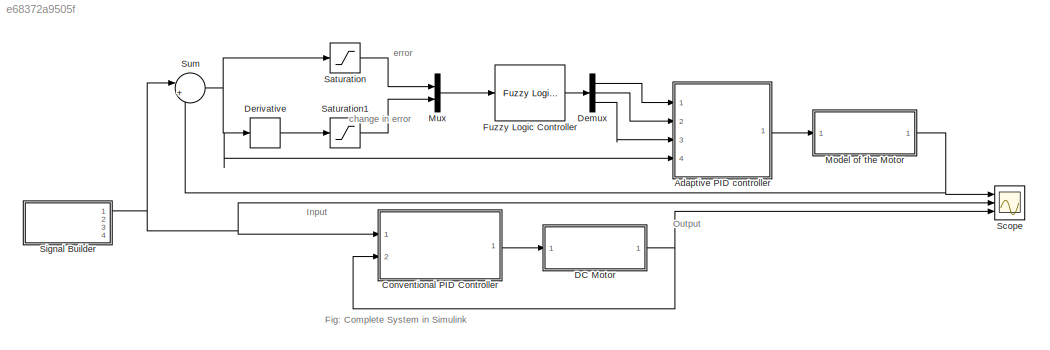
MODEL slx_e68372a9505f
KIND model
CONFIG AbsTol = auto
CONFIG EnableMultiTasking = off
CONFIG FixedStep = 0.001
CONFIG MaxStep = auto
CONFIG MinStep = auto
CONFIG RelTol = 1e-3
CONFIG SampleTimeConstraint = Unconstrained
CONFIG Solver = FixedStepAuto
CONFIG SolverName = FixedStepAuto
CONFIG StartTime = 0.0
CONFIG StopTime = 7.5
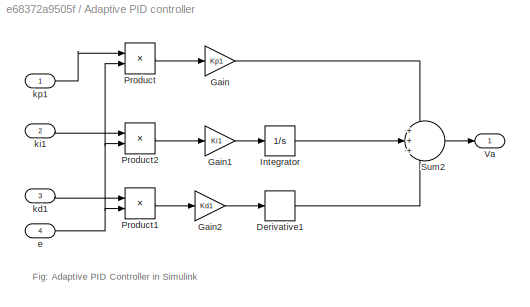
BLOCK [SubSystem]  Adaptive PID controller
  Ports = [4, 1]
  RequestExecContextInheritance = off
BLOCK [Derivative]  Adaptive PID controller/Derivative1
BLOCK [Gain]  Adaptive PID controller/Gain
  Gain = Kp1
BLOCK [Gain]  Adaptive PID controller/Gain1
  Gain = Ki1
BLOCK [Gain]  Adaptive PID controller/Gain2
  Gain = Kd1
BLOCK [Integrator]  Adaptive PID controller/Integrator
  Ports = [1, 1]
BLOCK [Product]  Adaptive PID controller/Product
  Ports = [2, 1]
BLOCK [Product]  Adaptive PID controller/Product1
  Ports = [2, 1]
BLOCK [Product]  Adaptive PID controller/Product2
  Ports = [2, 1]
BLOCK [Sum]  Adaptive PID controller/Sum2
  Inputs = +++
  Ports = [3, 1]
BLOCK [Outport]  Adaptive PID controller/Va
  VectorParamsAs1DForOutWhenUnconnected = off
BLOCK [Inport]  Adaptive PID controller/e
  Port = 4
BLOCK [Inport]  Adaptive PID controller/kd1 
  Port = 3
BLOCK [Inport]  Adaptive PID controller/ki1
  Port = 2
BLOCK [Inport]  Adaptive PID controller/kp1
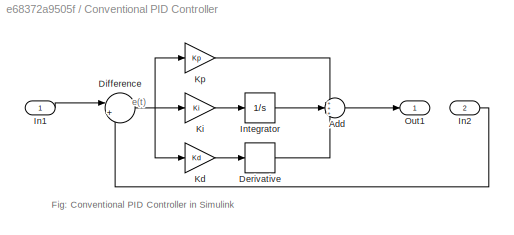
BLOCK [SubSystem] Conventional PID Controller
  Ports = [2, 1]
  RequestExecContextInheritance = off
BLOCK [Derivative] Conventional PID Controller/ Derivative
BLOCK [Sum] Conventional PID Controller/Add
  Inputs = +++
  Ports = [3, 1]
BLOCK [Sum] Conventional PID Controller/Difference
  Inputs = |+-
  Ports = [2, 1]
BLOCK [Inport] Conventional PID Controller/In1
BLOCK [Inport] Conventional PID Controller/In2
  Port = 2
BLOCK [Integrator] Conventional PID Controller/Integrator
  Ports = [1, 1]
BLOCK [Gain] Conventional PID Controller/Kd
  Gain = Kd
BLOCK [Gain] Conventional PID Controller/Ki
  Gain = Ki
BLOCK [Gain] Conventional PID Controller/Kp
  Gain = Kp
BLOCK [Outport] Conventional PID Controller/Out1
  VectorParamsAs1DForOutWhenUnconnected = off
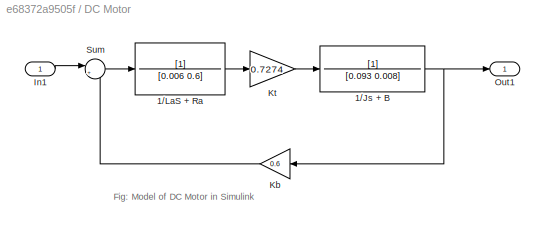
BLOCK [SubSystem] DC Motor
  Ports = [1, 1]
  RequestExecContextInheritance = off
BLOCK [TransferFcn] DC Motor/1//Js + B
  Denominator = [0.093 0.008]
BLOCK [TransferFcn] DC Motor/1//LaS + Ra
  Denominator = [0.006 0.6]
BLOCK [Inport] DC Motor/In1
BLOCK [Gain] DC Motor/Kb
  Gain = 0.6
BLOCK [Gain] DC Motor/Kt
  Gain = 0.7274
BLOCK [Outport] DC Motor/Out1
  VectorParamsAs1DForOutWhenUnconnected = off
BLOCK [Sum] DC Motor/Sum
  Inputs = |+-
  Ports = [2, 1]
BLOCK [Demux] Demux
  Outputs = 3
  Ports = [1, 3]
BLOCK [Derivative] Derivative
BLOCK [Reference] Fuzzy Logic Controller  REF=fuzblock/Fuzzy Logic   (lib defined in mdl_858b3b3e7478)
Controller
  Ports = [1, 1]
  SourceBlock = fuzblock/Fuzzy Logic \nController
  SourceProductBaseCode = FL
  SourceType = Fuzzy Inference System
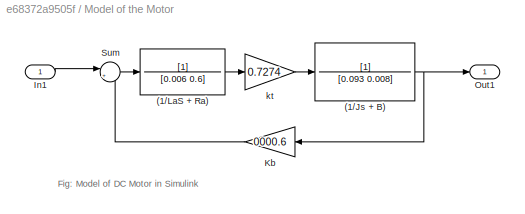
BLOCK [SubSystem] Model of the Motor
  Ports = [1, 1]
  RequestExecContextInheritance = off
BLOCK [TransferFcn] Model of the Motor/(1//Js + B)
  Denominator = [0.093 0.008]
BLOCK [TransferFcn] Model of the Motor/(1//LaS + Ra)
  Denominator = [0.006 0.6]
BLOCK [Inport] Model of the Motor/In1
BLOCK [Gain] Model of the Motor/Kb
  Gain = 0000.6
BLOCK [Outport] Model of the Motor/Out1
  VectorParamsAs1DForOutWhenUnconnected = off
BLOCK [Sum] Model of the Motor/Sum
  Inputs = |+-
  Ports = [2, 1]
BLOCK [Gain] Model of the Motor/kt
  Gain = 0.7274
BLOCK [Mux] Mux
  DisplayOption = bar
  Inputs = 2
  Ports = [2, 1]
BLOCK [Saturate] Saturation
  LinearizeAsGain = off
  LowerLimit = -1
  UpperLimit = 1
  ZeroCross = off
BLOCK [Saturate] Saturation1
  LinearizeAsGain = off
  LowerLimit = -1
  UpperLimit = 1
BLOCK [Scope] Scope
  Floating = off
  NumInputPorts = 3
  Ports = [3]
  ScopeSpecificationString = Simulink.scopes.TimeScopeBlockCfg('CurrentConfiguration', extmgr.ConfigurationSet(extmgr.Configuration('Core','General UI',true),extmgr.Configuration('Core','Source UI',true),extmgr.Configuration('Sources','WiredSimulink',true),extmgr.Configuration('Visuals','Time Domain',true,'SerializedDisplays',{struct('MinYLimReal','-0.28885','MaxYLimReal','2.59967','YLabelReal','','MinYLimMag','0.00000','MaxY...<+1593ch>
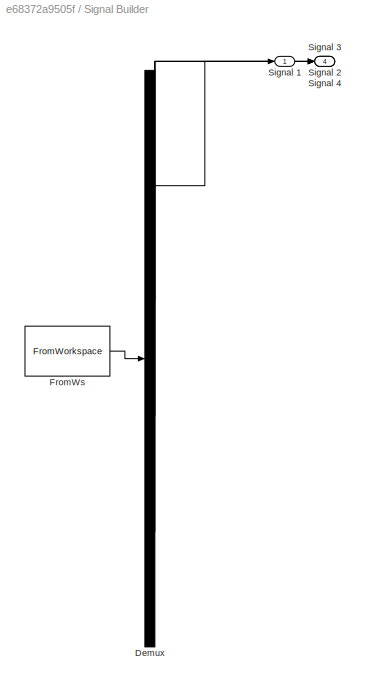
BLOCK [SubSystem] Signal Builder
  ClipboardFcn = sigbuilder_block('clipboard');
  CloseFcn = sigbuilder_block('close');
  ContinueFcn = sigbuilder_block('continue');
  CopyFcn = sigbuilder_block('copy');
  DeleteFcn = sigbuilder_block('delete');
  LoadFcn = sigbuilder_block('load');
  MaskHideContents = on
  ModelCloseFcn = sigbuilder_block('modelClose');
  NameChangeFcn = sigbuilder_block('namechange');
  OpenFcn = sigbuilder_block('open',[148.8 141 550.8 400.2 ]);
  PauseFcn = sigbuilder_block('pause');
  Ports = [0, 4]
  PreSaveFcn = sigbuilder_block('preSave');
  RequestExecContextInheritance = off
  StartFcn = sigbuilder_block('start');
  StopFcn = sigbuilder_block('stop');
  Tag = STV Subsys
BLOCK [Demux] Signal Builder/Demux
  DisplayOption = none
  Ports = [1, 4]
  Tag = STV Demux
BLOCK [FromWorkspace] Signal Builder/FromWs
  Tag = STV FromWs
  VariableName = tuvar
BLOCK [Outport] Signal Builder/Signal 1
  Tag = STV Outport
  VectorParamsAs1DForOutWhenUnconnected = off
BLOCK [Outport] Signal Builder/Signal 2
  Port = 2
  Tag = STV Outport
  VectorParamsAs1DForOutWhenUnconnected = off
BLOCK [Outport] Signal Builder/Signal 3
  Port = 3
  Tag = STV Outport
  VectorParamsAs1DForOutWhenUnconnected = off
BLOCK [Outport] Signal Builder/Signal 4
  Port = 4
  Tag = STV Outport
  VectorParamsAs1DForOutWhenUnconnected = off
BLOCK [Sum] Sum
  Inputs = |+-
  Ports = [2, 1]
ANNOTATION (root): Fig: Complete System in Simulink
ANNOTATION (root): Input
ANNOTATION (root): Output
ANNOTATION (root): change in error
ANNOTATION (root): error
ANNOTATION  Adaptive PID controller: Fig: Adaptive PID Controller in Simulink
ANNOTATION Conventional PID Controller: e(t)
ANNOTATION Conventional PID Controller: Fig: Conventional PID Controller in Simulink
ANNOTATION DC Motor: Fig: Model of DC Motor in Simulink
ANNOTATION Model of the Motor: Fig: Model of DC Motor in Simulink
LINE  Adaptive PID controller/Derivative1:1 ->  Adaptive PID controller/Sum2:3
LINE  Adaptive PID controller/Gain1:1 ->  Adaptive PID controller/Integrator:1
LINE  Adaptive PID controller/Gain2:1 ->  Adaptive PID controller/Derivative1:1
LINE  Adaptive PID controller/Gain:1 ->  Adaptive PID controller/Sum2:1
LINE  Adaptive PID controller/Integrator:1 ->  Adaptive PID controller/Sum2:2
LINE  Adaptive PID controller/Product1:1 ->  Adaptive PID controller/Gain2:1
LINE  Adaptive PID controller/Product2:1 ->  Adaptive PID controller/Gain1:1
LINE  Adaptive PID controller/Product:1 ->  Adaptive PID controller/Gain:1
LINE  Adaptive PID controller/Sum2:1 ->  Adaptive PID controller/Va:1
NET  Adaptive PID controller/e:1 ->  Adaptive PID controller/Product1:2,  Adaptive PID controller/Product2:2,  Adaptive PID controller/Product:2
LINE  Adaptive PID controller/kd1 :1 ->  Adaptive PID controller/Product1:1
LINE  Adaptive PID controller/ki1:1 ->  Adaptive PID controller/Product2:1
LINE  Adaptive PID controller/kp1:1 ->  Adaptive PID controller/Product:1
LINE  Adaptive PID controller:1 -> Model of the Motor:1
LINE Conventional PID Controller/ Derivative:1 -> Conventional PID Controller/Add:3
LINE Conventional PID Controller/Add:1 -> Conventional PID Controller/Out1:1
NET Conventional PID Controller/Difference:1 -> Conventional PID Controller/Kd:1, Conventional PID Controller/Ki:1, Conventional PID Controller/Kp:1
LINE Conventional PID Controller/In1:1 -> Conventional PID Controller/Difference:1
LINE Conventional PID Controller/In2:1 -> Conventional PID Controller/Difference:2
LINE Conventional PID Controller/Integrator:1 -> Conventional PID Controller/Add:2
LINE Conventional PID Controller/Kd:1 -> Conventional PID Controller/ Derivative:1
LINE Conventional PID Controller/Ki:1 -> Conventional PID Controller/Integrator:1
LINE Conventional PID Controller/Kp:1 -> Conventional PID Controller/Add:1
LINE Conventional PID Controller:1 -> DC Motor:1
NET DC Motor/1//Js + B:1 -> DC Motor/Kb:1, DC Motor/Out1:1
LINE DC Motor/1//LaS + Ra:1 -> DC Motor/Kt:1
LINE DC Motor/In1:1 -> DC Motor/Sum:1
LINE DC Motor/Kb:1 -> DC Motor/Sum:2
LINE DC Motor/Kt:1 -> DC Motor/1//Js + B:1
LINE DC Motor/Sum:1 -> DC Motor/1//LaS + Ra:1
NET DC Motor:1 -> Conventional PID Controller:2, Scope:3
LINE Demux:1 ->  Adaptive PID controller:1
LINE Demux:2 ->  Adaptive PID controller:2
LINE Demux:3 ->  Adaptive PID controller:3
LINE Derivative:1 -> Saturation1:1
LINE Fuzzy Logic Controller:1 -> Demux:1
NET Model of the Motor/(1//Js + B):1 -> Model of the Motor/Kb:1, Model of the Motor/Out1:1
LINE Model of the Motor/(1//LaS + Ra):1 -> Model of the Motor/kt:1
LINE Model of the Motor/In1:1 -> Model of the Motor/Sum:1
LINE Model of the Motor/Kb:1 -> Model of the Motor/Sum:2
LINE Model of the Motor/Sum:1 -> Model of the Motor/(1//LaS + Ra):1
LINE Model of the Motor/kt:1 -> Model of the Motor/(1//Js + B):1
NET Model of the Motor:1 -> Scope:1, Sum:2
LINE Mux:1 -> Fuzzy Logic Controller:1
LINE Saturation1:1 -> Mux:2
LINE Saturation:1 -> Mux:1
NET Signal Builder:1 -> Conventional PID Controller:1, Scope:2, Sum:1
NET Sum:1 ->  Adaptive PID controller:4, Derivative:1, Saturation:1
note: NET lines group one-source signal fan-out (src -> all destinations, sorted); 1:1 wires keep LINE
